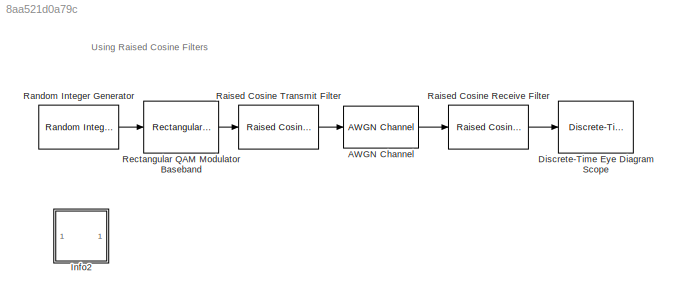
MODEL slx_8aa521d0a79c
KIND model
BLOCK [Reference] AWGN Channel  REF=commchan3/AWGN
Channel
  EbNodB = 10
  EsNodB = 10
  InputProcessing = Columns as channels (frame based)
  Ports = [1, 1]
  Ps = 0.0694 % Filter input signal pwer/Filter power gain = 0.5556/8
  SNRdB = 40
  SourceBlock = commchan3/AWGN\nChannel
  SourceType = AWGN Channel
  Tsym = 1
  UserDataPersistent = on
  bitsPerSym = 1
  noiseMode = Signal to noise ratio  (SNR)
  seed = 67
  variance = 1
BLOCK [Reference] Discrete-Time Eye Diagram Scope  REF=commsink2/Discrete-Time
Eye Diagram
Scope
  AxisGrid = on
  Diagnostics = AllowInheritedTsInSrc
  FigPos = [256 320 560 644]
  FrameNumber = off
  LineColors = b
  LineStyles = -
  Ports = [1]
  SourceBlock = commsink2/Discrete-Time\nEye Diagram\nScope
  SourceType = Discrete-Time Eye Diagram Scope
  Tag = EyeDiagram
  block_type_ = eye
  dispDiagram = In-phase and Quadrature
  dupPoints = on
  fading = on
  figTitle = Eye Diagram
  inphaseLabel = In-phase Amplitude
  numLinesMax = 8
  numNewFrames = 10
  numTraces = 100
  offsetEye = 0
  openScopeAtSimStart = on
  quadratureLabel = Quadrature Amplitude
  render = on
  sampPerSymb = 8
  symbPerTrace = 2
  yMax = 1.5
  yMin = -1.5
BLOCK [SubSystem] Info2
  AncestorBlock = commblksprivate/Info
  OpenFcn = helpview([docroot '/toolbox/comm/comm.map'], 'doc_rcfilters')
  Ports = []
  RequestExecContextInheritance = off
BLOCK [Reference] Raised Cosine Receive Filter  REF=commfilt2/Raised Cosine
Receive Filter
  D = 4
  InputProcessing = Columns as channels (frame based)
  LockScale = off
  N = 8
  Ports = [1, 1]
  R = 0.2
  SourceBlock = commfilt2/Raised Cosine\nReceive Filter
  SourceType = Raised Cosine Receive Filter
  UserDataPersistent = on
  accumFracLength = 30
  accumMode = Same as product output
  accumWordLength = 32
  checkCoeff = off
  checkGain = Normalized
  coeffFracLength = 15
  coeffMode = Same word length as input
  coeffWordLength = 16
  currentFiltSpan = 2*(4)
  downFactor = 1
  downOffset = 0
  filtSpan = 2*(4)
  filtType = Square root
  filterGain = rcfiltgaincompat(gcbh)
  framing = Maintain input frame rate
  launchFVT = off
  outputFracLength = 15
  outputMode = Same as accumulator
  outputWordLength = 16
  overflowMode = off
  prodOutputFracLength = 30
  prodOutputMode = Same as input
  prodOutputWordLength = 32
  rateMode = Downsampling
  roundingMode = Floor
  sampMode = Mute
  saveAsFlag = 0
  variableName = rcRxFilt
BLOCK [Reference] Raised Cosine Transmit Filter  REF=commfilt2/Raised Cosine
Transmit Filter
  D = 4
  InputProcessing = Columns as channels (frame based)
  LockScale = off
  N = 8
  Ports = [1, 1]
  R = 0.2
  SourceBlock = commfilt2/Raised Cosine\nTransmit Filter
  SourceType = Raised Cosine Transmit Filter
  UserDataPersistent = on
  accumFracLength = 30
  accumMode = Inherit via internal rule
  accumWordLength = 32
  checkCoeff = off
  checkGain = Normalized
  coeffFracLength = 15
  coeffMode = Same word length as input
  coeffWordLength = 16
  currentFiltSpan = 2*(4)
  filtSpan = 2*(4)
  filtType = Square root
  filterGain = rcfiltgaincompat(gcbh)
  framing = Maintain input frame rate
  launchFVT = off
  outputFracLength = 15
  outputMode = Same as accumulator
  outputWordLength = 16
  overflowMode = off
  prodOutputFracLength = 30
  prodOutputMode = Inherit via internal rule
  prodOutputWordLength = 32
  roundingMode = Floor
  sampMode = Mute
  saveAsFlag = 0
  variableName = rcTxFilt
BLOCK [Reference] Random Integer Generator  REF=commrandsrc2/Random Integer
Generator
  Ports = [0, 1]
  SourceBlock = commrandsrc2/Random Integer\nGenerator
  SourceType = Random Integer Generator
  Ts = 1/100
  frameBased = on
  mul = 16
  orient = off
  outDataType = double
  sampPerFrame = 100
  seed = 37
BLOCK [Reference] Rectangular QAM Modulator Baseband  REF=commdigbbndam3/Rectangular QAM
Modulator
Baseband
  AvgPow = 1
  Enc = Binary
  InType = Integer
  M = 16
  Mapping = [0:15]
  MinDist = 2
  PeakPow = 1
  Ph = 0
  Ports = [1, 1]
  PowType = Peak Power
  SourceBlock = commdigbbndam3/Rectangular QAM\nModulator\nBaseband
  SourceType = Rectangular QAM Modulator Baseband
  outDtype = double
  outFracLen = 15
  outFracLenMode = Best precision
  outUDDataType = sfix(16)
  outWordLen = 16
ANNOTATION (root): Using Raised Cosine Filters
LINE AWGN Channel:1 -> Raised Cosine Receive Filter:1
LINE Raised Cosine Receive Filter:1 -> Discrete-Time Eye Diagram Scope:1
LINE Raised Cosine Transmit Filter:1 -> AWGN Channel:1
LINE Random Integer Generator:1 -> Rectangular QAM Modulator Baseband:1
LINE Rectangular QAM Modulator Baseband:1 -> Raised Cosine Transmit Filter:1
